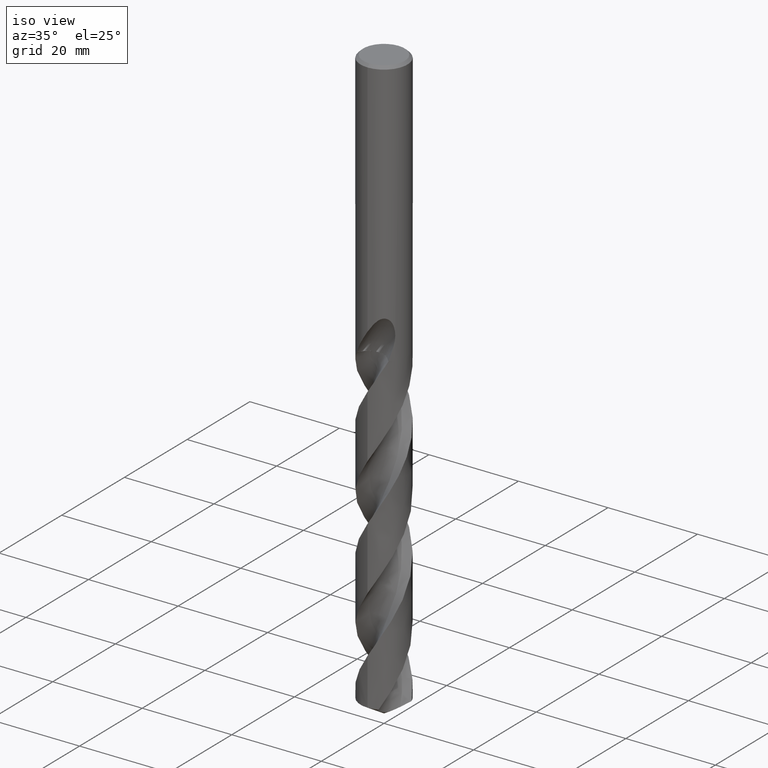
[diagram: clean part render]
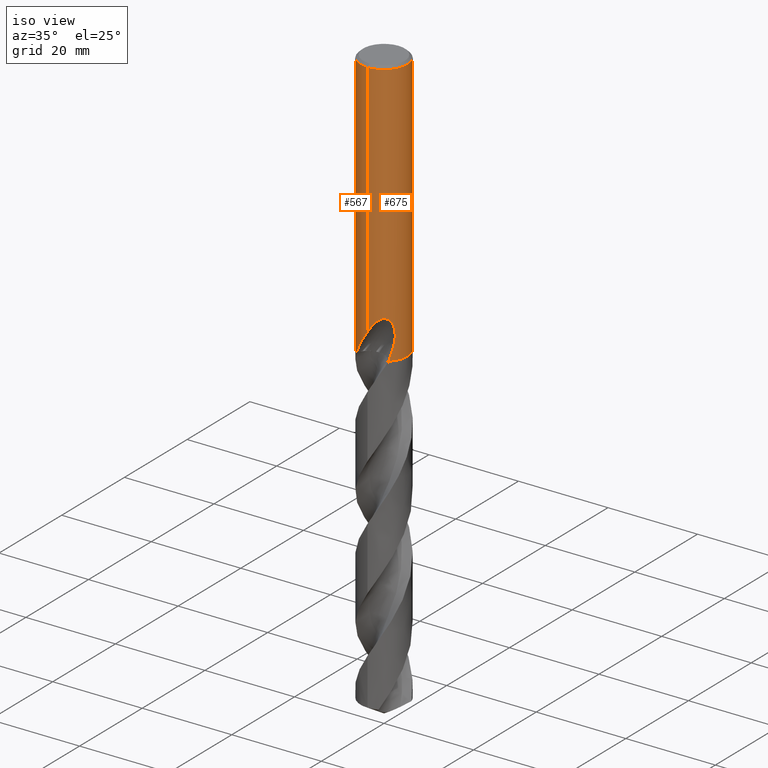
[diagram: same view with one multi-face feature highlighted, each face labeled with its STEP entity id]
A machine part, iso view. The highlighted faces form ONE feature: a constant-radius fillet chain: 2 tangent blend faces with common blend radius 5.25 mm. The faces share edges in the B-rep.
Their STEP definitions:
[1] entity #675 (Cylinder):
#271=VERTEX_POINT('',#748);
#275=VERTEX_POINT('',#753);
#279=EDGE_CURVE('',#423,#301,#757,.T.);
#301=VERTEX_POINT('',#781);
#311=EDGE_CURVE('',#423,#275,#792,.T.);
#313=EDGE_CURVE('',#393,#301,#794,.T.);
#339=EDGE_CURVE('',#661,#271,#823,.T.);
#349=EDGE_CURVE('',#519,#393,#833,.T.);
#373=EDGE_CURVE('',#679,#407,#858,.T.);
#393=VERTEX_POINT('',#881);
#397=EDGE_CURVE('',#685,#519,#885,.T.);
#407=VERTEX_POINT('',#896);
#423=VERTEX_POINT('',#912);
#453=EDGE_CURVE('',#707,#599,#945,.T.);
#457=VERTEX_POINT('',#949);
#497=EDGE_CURVE('',#679,#599,#993,.T.);
#499=EDGE_CURVE('',#605,#457,#995,.T.);
#519=VERTEX_POINT('',#1016);
#541=EDGE_CURVE('',#661,#275,#1039,.T.);
#571=EDGE_CURVE('',#271,#577,#1074,.T.);
#577=VERTEX_POINT('',#1080);
#599=VERTEX_POINT('',#1104);
#605=VERTEX_POINT('',#1110);
#615=EDGE_CURVE('',#407,#605,#1121,.T.);
#661=VERTEX_POINT('',#1170);
#663=EDGE_CURVE('',#457,#685,#1172,.T.);
#675=ADVANCED_FACE('',(#1186),#1187,.T.);
#679=VERTEX_POINT('',#1191);
#685=VERTEX_POINT('',#1197);
#699=EDGE_CURVE('',#707,#577,#1214,.T.);
#707=VERTEX_POINT('',#1223);
#748=CARTESIAN_POINT('',(4.27162135735454,-3.052171518672,-56.6302038027643));
#753=CARTESIAN_POINT('',(6.42918335756748E-016,-5.25,-0.600000000000001));
#757=LINE('',#1271,#1272);
#781=CARTESIAN_POINT('',(2.77694703732907E-015,5.25,-37.0232688117743));
#792=CIRCLE('',#1851,5.25);
#794=B_SPLINE_CURVE_WITH_KNOTS('',3,(#1854,#1855,#1856,#1857,#1858,#1859,#1860,#1861,#1862,#1863,#1864,#1865,#1866,#1867,#1868,#1869,#1870,#1871,#1872,#1873,#1874,#1875,#1876,#1877,#1878,#1879,#1880),.UNSPECIFIED.,.F.,.F.,(4,2,3,2,2,2,2,2,2,2,2,2,4),(-0.542399795064322,-0.271199897532161,0.0,0.271199897532165,0.542399795064329,0.814116667469375,1.08583353987442,1.35668430204441,1.62753506421439,1.89864140789568,2.16974775157697,2.44085409525827,2.71196043893956),.UNSPECIFIED.);
#823=B_SPLINE_CURVE_WITH_KNOTS('',3,(#3031,#3032,#3033,#3034,#3035,#3036,#3037,#3038,#3039,#3040,#3041,#3042,#3043,#3044,#3045,#3046,#3047,#3048,#3049,#3050,#3051,#3052,#3053,#3054,#3055,#3056,#3057,#3058,#3059,#3060),.UNSPECIFIED.,.F.,.F.,(4,2,2,2,2,2,2,2,2,2,2,2,2,2,4),(0.0,2.56856320752265,3.97271350027368,5.24506433148082,6.72354916384614,8.49927682704345,10.0360810336537,10.7333505914258,11.2430145050656,11.7253351143545,12.3372318489402,13.2324992318586,14.5052005400863,15.3377357336065,16.2126627555783),.UNSPECIFIED.);
#833=B_SPLINE_CURVE_WITH_KNOTS('',3,(#3223,#3224,#3225,#3226,#3227,#3228,#3229,#3230,#3231,#3232),.UNSPECIFIED.,.F.,.F.,(4,2,2,2,4),(0.617968789096333,0.9269531836445,1.23593757819267,1.54464396793388,1.8533503576751),.UNSPECIFIED.);
#858=B_SPLINE_CURVE_WITH_KNOTS('',3,(#3268,#3269,#3270,#3271,#3272,#3273,#3274,#3275,#3276,#3277,#3278,#3279,#3280,#3281,#3282,#3283),.UNSPECIFIED.,.F.,.F.,(4,2,2,2,2,2,2,4),(5.87056817262599,6.17961358051911,6.48873534269176,6.79785710486442,7.10697886703708,7.41610062920974,7.72480703614287,8.03351344307601),.UNSPECIFIED.);
#881=CARTESIAN_POINT('',(0.799431726384364,5.18877720805684,-36.000000276873));
#885=LINE('',#3367,#3368);
#896=CARTESIAN_POINT('',(0.29010312703583,5.24197865082299,-38.9998328990228));
#912=CARTESIAN_POINT('',(0.0,5.25,-0.600000000000001));
#945=B_SPLINE_CURVE_WITH_KNOTS('',3,(#3782,#3783,#3784,#3785,#3786,#3787,#3788,#3789,#3790,#3791,#3792,#3793,#3794,#3795,#3796,#3797,#3798,#3799,#3800,#3801,#3802,#3803,#3804,#3805,#3806,#3807,#3808,#3809,#3810,#3811),.UNSPECIFIED.,.F.,.F.,(4,2,2,2,2,2,2,2,2,2,2,2,2,2,4),(0.0,2.56856320752267,3.97271350027355,5.24506433148059,6.72354916384636,8.49927682704405,10.0360810336548,10.7333505914268,11.2430145050666,11.7253351143554,12.3372318489411,13.232499231861,14.5052005400926,15.3377357336148,16.2126627555888),.UNSPECIFIED.);
#949=CARTESIAN_POINT('',(0.873560781758956,5.17681287671987,-38.7587351791531));
#993=LINE('',#3907,#3908);
#995=LINE('',#3911,#3912);
#1016=CARTESIAN_POINT('',(1.33721006514658,5.0768463874408,-36.5150484364821));
#1039=LINE('',#4459,#4460);
#1074=B_SPLINE_CURVE_WITH_KNOTS('',3,(#4531,#4532,#4533,#4534),.UNSPECIFIED.,.F.,.F.,(4,4),(0.0,3.01201816955714),.UNSPECIFIED.);
#1080=CARTESIAN_POINT('',(3.65047600836312,-3.7731319765369,-59.5));
#1104=CARTESIAN_POINT('',(-1.61924867367628E-012,5.25,-53.9243709465312));
#1110=CARTESIAN_POINT('',(0.873560781758957,5.17681287671987,-37.3198931596091));
#1121=ELLIPSE('',#4711,16.0019715101913,5.25);
#1170=CARTESIAN_POINT('',(1.61969276288613E-012,-5.25,-53.9243709465312));
#1172=B_SPLINE_CURVE_WITH_KNOTS('',3,(#5458,#5459,#5460,#5461,#5462,#5463,#5464,#5465,#5466,#5467),.UNSPECIFIED.,.F.,.F.,(4,2,2,2,4),(8.03351270582738,8.34221908513117,8.65092546443496,8.95990984825869,9.26889423208242),.UNSPECIFIED.);
#1186=FACE_OUTER_BOUND('',#5630,.T.);
#1187=CYLINDRICAL_SURFACE('',#5631,5.25);
#1191=CARTESIAN_POINT('',(-1.14507206770393E-015,5.25,-39.0310253601033));
#1197=CARTESIAN_POINT('',(1.33721006514658,5.0768463874408,-38.2901657003257));
#1214=CIRCLE('',#6459,5.25);
#1223=CARTESIAN_POINT('',(3.34300309684929,4.04806500620433,-59.5));
#1271=CARTESIAN_POINT('',(-6.42918335756748E-016,5.25,-50.25));
#1272=VECTOR('',#6848,1.0);
#1851=AXIS2_PLACEMENT_3D('',#6906,#6907,#6908);
#1854=CARTESIAN_POINT('',(0.665097026860736,5.20770063894431,-35.813570575918));
#1855=CARTESIAN_POINT('',(0.728729365813046,5.19957388927424,-35.8772654360235));
#1856=CARTESIAN_POINT('',(0.783967374853908,5.19126897051171,-35.9579473086228));
#1857=CARTESIAN_POINT('',(0.857307611586588,5.17966234826987,-36.1349291572767));
#1858=CARTESIAN_POINT('',(0.875400981188567,5.17650201604656,-36.2312420467427));
#1859=CARTESIAN_POINT('',(0.875400981188567,5.17650201604656,-36.3216420125868));
#1860=CARTESIAN_POINT('',(0.875400981188567,5.17650201604656,-36.4120419784308));
#1861=CARTESIAN_POINT('',(0.857307611586587,5.17966234826987,-36.5083548678969));
#1862=CARTESIAN_POINT('',(0.783967374853902,5.19126897051171,-36.6853367165508));
#1863=CARTESIAN_POINT('',(0.728729365813047,5.19957388927424,-36.7660185891501));
#1864=CARTESIAN_POINT('',(0.601343388746291,5.21584288023299,-36.8935297277042));
#1865=CARTESIAN_POINT('',(0.520598402331123,5.22488038300429,-36.9488795735804));
#1866=CARTESIAN_POINT('',(0.343463081451269,5.2395067348466,-37.022377386646));
#1867=CARTESIAN_POINT('',(0.24705841766139,5.24496572706855,-37.0405166027747));
#1868=CARTESIAN_POINT('',(0.0662829394077855,5.25035786381228,-37.0405166027747));
#1869=CARTESIAN_POINT('',(-0.0299882923670762,5.25066114829167,-37.0224806987772));
#1870=CARTESIAN_POINT('',(-0.207050941697533,5.24666291079663,-36.9491562461929));
#1871=CARTESIAN_POINT('',(-0.287846680828677,5.24249287782911,-36.8938710224876));
#1872=CARTESIAN_POINT('',(-0.415483515486104,5.23392476555411,-36.7663143520323));
#1873=CARTESIAN_POINT('',(-0.470834291982823,5.22897465408802,-36.6855001971403));
#1874=CARTESIAN_POINT('',(-0.54426858087232,5.22184187657221,-36.5083519547388));
#1875=CARTESIAN_POINT('',(-0.562348199187247,5.21979544645869,-36.4120107938139));
#1876=CARTESIAN_POINT('',(-0.562348199187247,5.21979544645869,-36.2312732313597));
#1877=CARTESIAN_POINT('',(-0.54426858087232,5.22184187657221,-36.1349320704347));
#1878=CARTESIAN_POINT('',(-0.470834291982819,5.22897465408802,-35.9577838280332));
#1879=CARTESIAN_POINT('',(-0.415483515486106,5.23392476555411,-35.8769696731413));
#1880=CARTESIAN_POINT('',(-0.351635002034701,5.23821084200933,-35.8131612606933));
#3031=CARTESIAN_POINT('',(-3.34300309684929,-4.04806500620433,-59.5));
#3032=CARTESIAN_POINT('',(-2.99687822959538,-4.3339044137615,-58.7709246620821));
#3033=CARTESIAN_POINT('',(-2.59911045208701,-4.58789438146424,-58.091008233867));
#3034=CARTESIAN_POINT('',(-1.90552422998388,-4.89935642873079,-56.9549437452271));
#3035=CARTESIAN_POINT('',(-1.65575870932603,-4.98901513655451,-56.5549235405047));
#3036=CARTESIAN_POINT('',(-1.17216404099528,-5.12303033228772,-55.7804534587544));
#3037=CARTESIAN_POINT('',(-0.940482875853001,-5.17037770699667,-55.4095956870673));
#3038=CARTESIAN_POINT('',(-0.438936575422659,-5.23868760604929,-54.6102277355297));
#3039=CARTESIAN_POINT('',(-0.164868958937861,-5.25469376107535,-54.1754425452885));
#3040=CARTESIAN_POINT('',(0.443725962911433,-5.24174994041205,-53.2454270976495));
#3041=CARTESIAN_POINT('',(0.804588683468086,-5.2020642357076,-52.7162394633374));
#3042=CARTESIAN_POINT('',(1.50001764722721,-5.04202864043488,-51.8444422866277));
#3043=CARTESIAN_POINT('',(1.8843802813509,-4.92029603540759,-51.4195098901514));
#3044=CARTESIAN_POINT('',(2.46633925228444,-4.6390051665454,-51.0212964624024));
#3045=CARTESIAN_POINT('',(2.6591272909741,-4.53272694860848,-50.9228096802394));
#3046=CARTESIAN_POINT('',(2.99694485361629,-4.31389739293939,-50.847172668473));
#3047=CARTESIAN_POINT('',(3.1355067757508,-4.21423813289497,-50.8457781490611));
#3048=CARTESIAN_POINT('',(3.39358907946698,-4.00896014608491,-50.91204928158));
#3049=CARTESIAN_POINT('',(3.50646270782271,-3.90981372767206,-50.974170961234));
#3050=CARTESIAN_POINT('',(3.73616446599896,-3.69253811426573,-51.1685304660962));
#3051=CARTESIAN_POINT('',(3.84243540459419,-3.57993917174466,-51.3120284745182));
#3052=CARTESIAN_POINT('',(4.06011292075334,-3.33407137982889,-51.7049672032232));
#3053=CARTESIAN_POINT('',(4.16415594422415,-3.20018061934934,-51.9964129061582));
#3054=CARTESIAN_POINT('',(4.35979084456623,-2.93135113066713,-52.8118237590714));
#3055=CARTESIAN_POINT('',(4.43050770497261,-2.81685830844486,-53.3925419090501));
#3056=CARTESIAN_POINT('',(4.4654646539759,-2.76094286092583,-54.46714703385));
#3057=CARTESIAN_POINT('',(4.45722028986141,-2.77461263102338,-54.8950053842224));
#3058=CARTESIAN_POINT('',(4.39906999185343,-2.86596621063543,-55.7633393988255));
#3059=CARTESIAN_POINT('',(4.34716192323178,-2.9464498406556,-56.2005470335072));
#3060=CARTESIAN_POINT('',(4.27162135735455,-3.052171518672,-56.6302038027643));
#3223=CARTESIAN_POINT('',(1.47553105001771,5.03838348286766,-36.7774248903128));
#3224=CARTESIAN_POINT('',(1.43386686490542,5.05058516616606,-36.6772003710789));
#3225=CARTESIAN_POINT('',(1.38209288289205,5.06518749826514,-36.5812783357039));
#3226=CARTESIAN_POINT('',(1.26269926650106,5.09626291427482,-36.4040456456482));
#3227=CARTESIAN_POINT('',(1.19506981885474,5.11270359399583,-36.3227359216919));
#3228=CARTESIAN_POINT('',(1.05117033515797,5.14421627382495,-36.1788837941395));
#3229=CARTESIAN_POINT('',(0.969890272485671,5.16041570730384,-36.1113095648943));
#3230=CARTESIAN_POINT('',(0.792692053591304,5.19058924602321,-35.9919946724535));
#3231=CARTESIAN_POINT('',(0.696774805784578,5.20453447835038,-35.9402453603776));
#3232=CARTESIAN_POINT('',(0.59656055204577,5.2159961184555,-35.8986056305507));
#3268=CARTESIAN_POINT('',(-1.37926742621425,5.06558203634926,-38.3123347547908));
#3269=CARTESIAN_POINT('',(-1.31962906140336,5.08182049684984,-38.4008951534534));
#3270=CARTESIAN_POINT('',(-1.25207888936096,5.09904307195139,-38.4821459680166));
#3271=CARTESIAN_POINT('',(-1.10830029839744,5.13221345353604,-38.6259736555233));
#3272=CARTESIAN_POINT('',(-1.02704149791913,5.14934872075352,-38.6935757189003));
#3273=CARTESIAN_POINT('',(-0.849869700727159,5.18153722152637,-38.8129566745856));
#3274=CARTESIAN_POINT('',(-0.753957413257384,5.19656163444011,-38.864744388435));
#3275=CARTESIAN_POINT('',(-0.553494164547183,5.22171895170731,-38.9481071622894));
#3276=CARTESIAN_POINT('',(-0.448771587220649,5.23185310104718,-38.979748086953));
#3277=CARTESIAN_POINT('',(-0.237726512447408,5.24568097711988,-39.0213363554506));
#3278=CARTESIAN_POINT('',(-0.131401253104081,5.24936673069548,-39.0312723335086));
#3279=CARTESIAN_POINT('',(0.0745384646860068,5.25047929876906,-39.0312723335086));
#3280=CARTESIAN_POINT('',(0.180760056506751,5.24794997541603,-39.0213625600103));
#3281=CARTESIAN_POINT('',(0.391662828937599,5.23643517776389,-38.9798452831324));
#3282=CARTESIAN_POINT('',(0.496346588782296,5.22745773108946,-38.9482486566367));
#3283=CARTESIAN_POINT('',(0.596560847506726,5.21599608466322,-38.9066089245671));
#3367=CARTESIAN_POINT('',(1.33721006514658,5.0768463874408,-37.4026070684039));
#3368=VECTOR('',#6979,1.0);
#3782=CARTESIAN_POINT('',(3.34300309684929,4.04806500620433,-59.5));
#3783=CARTESIAN_POINT('',(2.99687822959538,4.3339044137615,-58.770924662082));
#3784=CARTESIAN_POINT('',(2.599110452087,4.58789438146424,-58.091008233867));
#3785=CARTESIAN_POINT('',(1.90552422998392,4.89935642873077,-56.9549437452272));
#3786=CARTESIAN_POINT('',(1.6557587093261,4.9890151365545,-56.5549235405048));
#3787=CARTESIAN_POINT('',(1.17216404099521,5.12303033228774,-55.7804534587543));
#3788=CARTESIAN_POINT('',(0.94048287585285,5.17037770699668,-55.409595687067));
#3789=CARTESIAN_POINT('',(0.438936575422741,5.23868760604927,-54.6102277355298));
#3790=CARTESIAN_POINT('',(0.164868958937902,5.25469376107535,-54.1754425452885));
#3791=CARTESIAN_POINT('',(-0.443725962911445,5.24174994041205,-53.2454270976495));
#3792=CARTESIAN_POINT('',(-0.804588683468087,5.2020642357076,-52.7162394633374));
#3793=CARTESIAN_POINT('',(-1.50001764722722,5.04202864043487,-51.8444422866277));
#3794=CARTESIAN_POINT('',(-1.88438028135091,4.92029603540759,-51.4195098901514));
#3795=CARTESIAN_POINT('',(-2.4663392522844,4.63900516654542,-51.0212964624024));
#3796=CARTESIAN_POINT('',(-2.65912729097409,4.53272694860848,-50.9228096802394));
#3797=CARTESIAN_POINT('',(-2.99694485361629,4.31389739293939,-50.847172668473));
#3798=CARTESIAN_POINT('',(-3.13550677575081,4.21423813289498,-50.8457781490611));
#3799=CARTESIAN_POINT('',(-3.39358907946699,4.00896014608492,-50.91204928158));
#3800=CARTESIAN_POINT('',(-3.50646270782272,3.90981372767206,-50.9741709612339));
#3801=CARTESIAN_POINT('',(-3.73616446599898,3.69253811426573,-51.1685304660962));
#3802=CARTESIAN_POINT('',(-3.84243540459421,3.57993917174464,-51.3120284745182));
#3803=CARTESIAN_POINT('',(-4.06011292075358,3.33407137982862,-51.7049672032237));
#3804=CARTESIAN_POINT('',(-4.16415594422431,3.20018061934912,-51.9964129061588));
#3805=CARTESIAN_POINT('',(-4.35979084456616,2.93135113066723,-52.8118237590711));
#3806=CARTESIAN_POINT('',(-4.43050770497261,2.81685830844487,-53.3925419090497));
#3807=CARTESIAN_POINT('',(-4.46546465397591,2.76094286092583,-54.46714703385));
#3808=CARTESIAN_POINT('',(-4.45722028986141,2.77461263102337,-54.8950053842224));
#3809=CARTESIAN_POINT('',(-4.39906999185344,2.86596621063543,-55.7633393988255));
#3810=CARTESIAN_POINT('',(-4.34716192323179,2.94644984065559,-56.2005470335072));
#3811=CARTESIAN_POINT('',(-4.27162135735455,3.05217151867199,-56.6302038027642));
#3907=CARTESIAN_POINT('',(-6.42918335756748E-016,5.25,-50.25));
#3908=VECTOR('',#7074,1.0);
#3911=CARTESIAN_POINT('',(0.873560781758957,5.17681287671987,-38.0393141693811));
#3912=VECTOR('',#7075,1.0);
#4459=CARTESIAN_POINT('',(6.42918335756748E-016,-5.25,-50.25));
#4460=VECTOR('',#7106,1.0);
#4531=CARTESIAN_POINT('',(4.27162135740717,-3.05217151859835,-56.6302038027932));
#4532=CARTESIAN_POINT('',(4.10266082013963,-3.28863773131056,-57.591226294007));
#4533=CARTESIAN_POINT('',(3.89908268754416,-3.5326069369908,-58.5579336632313));
#4534=CARTESIAN_POINT('',(3.65047600836312,-3.7731319765369,-59.5));
#4711=AXIS2_PLACEMENT_3D('',#7219,#7220,#7221);
#5458=CARTESIAN_POINT('',(0.596560574337958,5.21599611590591,-38.9066084901482));
#5459=CARTESIAN_POINT('',(0.696774824656029,5.20453447575813,-38.8649687617263));
#5460=CARTESIAN_POINT('',(0.792692069184456,5.19058924358933,-38.8132194513991));
#5461=CARTESIAN_POINT('',(0.96989028202291,5.16041570545849,-38.6939045629876));
#5462=CARTESIAN_POINT('',(1.0511703419175,5.14421627240791,-38.626330336023));
#5463=CARTESIAN_POINT('',(1.19506982063513,5.11270359354264,-38.4824782133751));
#5464=CARTESIAN_POINT('',(1.26269926591824,5.09626291439306,-38.4011684922262));
#5465=CARTESIAN_POINT('',(1.38209287814114,5.06518749953515,-38.2239358082892));
#5466=CARTESIAN_POINT('',(1.43386685834914,5.05058516801421,-38.1280137762253));
#5467=CARTESIAN_POINT('',(1.47553104200775,5.03838348521344,-38.0277892604537));
#5630=EDGE_LOOP('',(#7283,#7284,#7285,#7286,#7287,#7288,#7289,#7290,#7291,#7292,#7293,#7294,#7295,#7296,#7297));
#5631=AXIS2_PLACEMENT_3D('',#7298,#7299,#7300);
#6459=AXIS2_PLACEMENT_3D('',#7335,#7336,#7337);
#6848=DIRECTION('',(0.0,0.0,-1.0));
#6906=CARTESIAN_POINT('',(0.0,0.0,-0.600000000000001));
#6907=DIRECTION('',(0.0,0.0,-1.0));
#6908=DIRECTION('',(0.0,1.0,0.0));
#6979=DIRECTION('',(-0.0,-0.0,1.0));
#7074=DIRECTION('',(0.0,0.0,-1.0));
#7075=DIRECTION('',(0.0,0.0,-1.0));
#7106=DIRECTION('',(-0.0,-0.0,1.0));
#7219=CARTESIAN_POINT('',(0.0,0.0,-39.8351219173269));
#7220=DIRECTION('',(0.944648353914092,0.0,-0.328084573619969));
#7221=DIRECTION('',(0.328084573619969,-0.0,0.944648353914092));
#7283=ORIENTED_EDGE('',*,*,#279,.F.);
#7284=ORIENTED_EDGE('',*,*,#311,.T.);
#7285=ORIENTED_EDGE('',*,*,#541,.F.);
#7286=ORIENTED_EDGE('',*,*,#339,.T.);
#7287=ORIENTED_EDGE('',*,*,#571,.T.);
#7288=ORIENTED_EDGE('',*,*,#699,.F.);
#7289=ORIENTED_EDGE('',*,*,#453,.T.);
#7290=ORIENTED_EDGE('',*,*,#497,.F.);
#7291=ORIENTED_EDGE('',*,*,#373,.T.);
#7292=ORIENTED_EDGE('',*,*,#615,.T.);
#7293=ORIENTED_EDGE('',*,*,#499,.T.);
#7294=ORIENTED_EDGE('',*,*,#663,.T.);
#7295=ORIENTED_EDGE('',*,*,#397,.T.);
#7296=ORIENTED_EDGE('',*,*,#349,.T.);
#7297=ORIENTED_EDGE('',*,*,#313,.T.);
#7298=CARTESIAN_POINT('',(0.0,0.0,-50.25));
#7299=DIRECTION('',(-0.0,-0.0,1.0));
#7300=DIRECTION('',(0.0,1.0,0.0));
#7335=CARTESIAN_POINT('',(0.0,0.0,-59.5));
#7336=DIRECTION('',(0.0,0.0,-1.0));
#7337=DIRECTION('',(0.0,1.0,0.0));
[2] entity #567 (Cylinder):
#275=VERTEX_POINT('',#753);
#279=EDGE_CURVE('',#423,#301,#757,.T.);
#287=VERTEX_POINT('',#766);
#301=VERTEX_POINT('',#781);
#335=EDGE_CURVE('',#287,#387,#819,.T.);
#343=EDGE_CURVE('',#371,#387,#827,.T.);
#361=VERTEX_POINT('',#846);
#371=VERTEX_POINT('',#856);
#377=EDGE_CURVE('',#287,#661,#862,.T.);
#387=VERTEX_POINT('',#874);
#399=VERTEX_POINT('',#887);
#423=VERTEX_POINT('',#912);
#445=EDGE_CURVE('',#361,#399,#937,.T.);
#451=EDGE_CURVE('',#399,#655,#943,.T.);
#455=EDGE_CURVE('',#515,#361,#947,.T.);
#497=EDGE_CURVE('',#679,#599,#993,.T.);
#513=EDGE_CURVE('',#655,#639,#1010,.T.);
#515=VERTEX_POINT('',#1012);
#523=EDGE_CURVE('',#565,#515,#1020,.T.);
#541=EDGE_CURVE('',#661,#275,#1039,.T.);
#543=EDGE_CURVE('',#275,#423,#1041,.T.);
#555=EDGE_CURVE('',#301,#565,#1055,.T.);
#565=VERTEX_POINT('',#1067);
#567=ADVANCED_FACE('',(#1069),#1070,.T.);
#599=VERTEX_POINT('',#1104);
#603=EDGE_CURVE('',#599,#371,#1108,.T.);
#639=VERTEX_POINT('',#1147);
#655=VERTEX_POINT('',#1163);
#661=VERTEX_POINT('',#1170);
#679=VERTEX_POINT('',#1191);
#681=EDGE_CURVE('',#639,#679,#1193,.T.);
#753=CARTESIAN_POINT('',(6.42918335756748E-016,-5.25,-0.600000000000001));
#757=LINE('',#1271,#1272);
#766=CARTESIAN_POINT('',(-3.34300309684929,-4.04806500620433,-59.5));
#781=CARTESIAN_POINT('',(2.77694703732907E-015,5.25,-37.0232688117743));
#819=CIRCLE('',#3026,5.25);
#827=B_SPLINE_CURVE_WITH_KNOTS('',3,(#3213,#3214,#3215,#3216),.UNSPECIFIED.,.F.,.F.,(4,4),(0.0,3.01201816955674),.UNSPECIFIED.);
#846=CARTESIAN_POINT('',(-1.0350734039088,5.14695279252886,-36.3171221986971));
#856=CARTESIAN_POINT('',(-4.27162135735455,3.05217151867199,-56.6302038027642));
#862=B_SPLINE_CURVE_WITH_KNOTS('',3,(#3288,#3289,#3290,#3291,#3292,#3293,#3294,#3295,#3296,#3297,#3298,#3299,#3300,#3301,#3302,#3303,#3304,#3305,#3306,#3307,#3308,#3309,#3310,#3311,#3312,#3313,#3314,#3315,#3316,#3317),.UNSPECIFIED.,.F.,.F.,(4,2,2,2,2,2,2,2,2,2,2,2,2,2,4),(0.0,2.56856320752265,3.97271350027368,5.24506433148082,6.72354916384614,8.49927682704345,10.0360810336537,10.7333505914258,11.2430145050656,11.7253351143545,12.3372318489402,13.2324992318586,14.5052005400863,15.3377357336065,16.2126627555783),.UNSPECIFIED.);
#874=CARTESIAN_POINT('',(-3.65047600836313,3.77313197653689,-59.5));
#887=CARTESIAN_POINT('',(-1.17859584229484E-015,5.25,-37.5000801551881));
#912=CARTESIAN_POINT('',(0.0,5.25,-0.600000000000001));
#937=B_SPLINE_CURVE_WITH_KNOTS('',3,(#3756,#3757,#3758,#3759,#3760,#3761,#3762,#3763,#3764,#3765,#3766,#3767,#3768,#3769),.UNSPECIFIED.,.F.,.F.,(4,2,2,2,2,2,4),(3.13200953780745,3.57919062656478,4.0263717153221,4.47355280407943,4.91990756628693,5.36626232849443,5.81486346914523),.UNSPECIFIED.);
#943=LINE('',#3778,#3779);
#947=CIRCLE('',#3814,5.25);
#993=LINE('',#3907,#3908);
#1010=ELLIPSE('',#4244,5.85337426822502,5.25);
#1012=CARTESIAN_POINT('',(-0.562333990228013,5.21979697722375,-36.3171221986971));
#1020=B_SPLINE_CURVE_WITH_KNOTS('',3,(#4404,#4405,#4406,#4407,#4408,#4409,#4410,#4411,#4412,#4413,#4414,#4415,#4416,#4417,#4418,#4419,#4420,#4421,#4422,#4423,#4424,#4425,#4426,#4427,#4428,#4429,#4430),.UNSPECIFIED.,.F.,.F.,(4,2,3,2,2,2,2,2,2,2,2,2,4),(-0.542399795064322,-0.271199897532161,0.0,0.271199897532165,0.542399795064329,0.814116667469375,1.08583353987442,1.35668430204441,1.62753506421439,1.89864140789568,2.16974775157697,2.44085409525827,2.71196043893956),.UNSPECIFIED.);
#1039=LINE('',#4459,#4460);
#1041=CIRCLE('',#4463,5.25);
#1055=B_SPLINE_CURVE_WITH_KNOTS('',3,(#4483,#4484,#4485,#4486,#4487,#4488,#4489,#4490,#4491,#4492,#4493,#4494,#4495,#4496,#4497,#4498,#4499,#4500,#4501,#4502,#4503,#4504,#4505,#4506,#4507,#4508,#4509),.UNSPECIFIED.,.F.,.F.,(4,2,3,2,2,2,2,2,2,2,2,2,4),(-0.542399795064322,-0.271199897532161,0.0,0.271199897532165,0.542399795064329,0.814116667469375,1.08583353987442,1.35668430204441,1.62753506421439,1.89864140789568,2.16974775157697,2.44085409525827,2.71196043893956),.UNSPECIFIED.);
#1067=CARTESIAN_POINT('',(-0.486378944383045,5.22742149845034,-36.6432837483006));
#1069=FACE_OUTER_BOUND('',#4523,.T.);
#1070=CYLINDRICAL_SURFACE('',#4524,5.25);
#1104=CARTESIAN_POINT('',(-1.61924867367628E-012,5.25,-53.9243709465312));
#1108=B_SPLINE_CURVE_WITH_KNOTS('',3,(#4635,#4636,#4637,#4638,#4639,#4640,#4641,#4642,#4643,#4644,#4645,#4646,#4647,#4648,#4649,#4650,#4651,#4652,#4653,#4654,#4655,#4656,#4657,#4658,#4659,#4660,#4661,#4662,#4663,#4664),.UNSPECIFIED.,.F.,.F.,(4,2,2,2,2,2,2,2,2,2,2,2,2,2,4),(0.0,2.56856320752267,3.97271350027355,5.24506433148059,6.72354916384636,8.49927682704405,10.0360810336548,10.7333505914268,11.2430145050666,11.7253351143554,12.3372318489411,13.232499231861,14.5052005400926,15.3377357336148,16.2126627555888),.UNSPECIFIED.);
#1147=CARTESIAN_POINT('',(-1.337052752443,5.07688782003154,-38.3720803908795));
#1163=CARTESIAN_POINT('',(-8.21544981943547E-016,5.25,-37.7128911336578));
#1170=CARTESIAN_POINT('',(1.61969276288613E-012,-5.25,-53.9243709465312));
#1191=CARTESIAN_POINT('',(-1.14507206770393E-015,5.25,-39.0310253601033));
#1193=B_SPLINE_CURVE_WITH_KNOTS('',3,(#5640,#5641,#5642,#5643,#5644,#5645,#5646,#5647,#5648,#5649,#5650,#5651,#5652,#5653,#5654,#5655),.UNSPECIFIED.,.F.,.F.,(4,2,2,2,2,2,2,4),(5.87056817262599,6.17961358051911,6.48873534269176,6.79785710486442,7.10697886703708,7.41610062920974,7.72480703614287,8.03351344307601),.UNSPECIFIED.);
#1271=CARTESIAN_POINT('',(-6.42918335756748E-016,5.25,-50.25));
#1272=VECTOR('',#6848,1.0);
#3026=AXIS2_PLACEMENT_3D('',#6933,#6934,#6935);
#3213=CARTESIAN_POINT('',(-4.27162135740716,3.05217151859835,-56.6302038027932));
#3214=CARTESIAN_POINT('',(-4.10266082013964,3.28863773131052,-57.5912262940069));
#3215=CARTESIAN_POINT('',(-3.89908268754417,3.53260693699078,-58.5579336632313));
#3216=CARTESIAN_POINT('',(-3.65047600836312,3.77313197653689,-59.5));
#3288=CARTESIAN_POINT('',(-3.34300309684929,-4.04806500620433,-59.5));
#3289=CARTESIAN_POINT('',(-2.99687822959538,-4.3339044137615,-58.7709246620821));
#3290=CARTESIAN_POINT('',(-2.59911045208701,-4.58789438146424,-58.091008233867));
#3291=CARTESIAN_POINT('',(-1.90552422998388,-4.89935642873079,-56.9549437452271));
#3292=CARTESIAN_POINT('',(-1.65575870932603,-4.98901513655451,-56.5549235405047));
#3293=CARTESIAN_POINT('',(-1.17216404099528,-5.12303033228772,-55.7804534587544));
#3294=CARTESIAN_POINT('',(-0.940482875853001,-5.17037770699667,-55.4095956870673));
#3295=CARTESIAN_POINT('',(-0.438936575422659,-5.23868760604929,-54.6102277355297));
#3296=CARTESIAN_POINT('',(-0.164868958937861,-5.25469376107535,-54.1754425452885));
#3297=CARTESIAN_POINT('',(0.443725962911433,-5.24174994041205,-53.2454270976495));
#3298=CARTESIAN_POINT('',(0.804588683468086,-5.2020642357076,-52.7162394633374));
#3299=CARTESIAN_POINT('',(1.50001764722721,-5.04202864043488,-51.8444422866277));
#3300=CARTESIAN_POINT('',(1.8843802813509,-4.92029603540759,-51.4195098901514));
#3301=CARTESIAN_POINT('',(2.46633925228444,-4.6390051665454,-51.0212964624024));
#3302=CARTESIAN_POINT('',(2.6591272909741,-4.53272694860848,-50.9228096802394));
#3303=CARTESIAN_POINT('',(2.99694485361629,-4.31389739293939,-50.847172668473));
#3304=CARTESIAN_POINT('',(3.1355067757508,-4.21423813289497,-50.8457781490611));
#3305=CARTESIAN_POINT('',(3.39358907946698,-4.00896014608491,-50.91204928158));
#3306=CARTESIAN_POINT('',(3.50646270782271,-3.90981372767206,-50.974170961234));
#3307=CARTESIAN_POINT('',(3.73616446599896,-3.69253811426573,-51.1685304660962));
#3308=CARTESIAN_POINT('',(3.84243540459419,-3.57993917174466,-51.3120284745182));
#3309=CARTESIAN_POINT('',(4.06011292075334,-3.33407137982889,-51.7049672032232));
#3310=CARTESIAN_POINT('',(4.16415594422415,-3.20018061934934,-51.9964129061582));
#3311=CARTESIAN_POINT('',(4.35979084456623,-2.93135113066713,-52.8118237590714));
#3312=CARTESIAN_POINT('',(4.43050770497261,-2.81685830844486,-53.3925419090501));
#3313=CARTESIAN_POINT('',(4.4654646539759,-2.76094286092583,-54.46714703385));
#3314=CARTESIAN_POINT('',(4.45722028986141,-2.77461263102338,-54.8950053842224));
#3315=CARTESIAN_POINT('',(4.39906999185343,-2.86596621063543,-55.7633393988255));
#3316=CARTESIAN_POINT('',(4.34716192323178,-2.9464498406556,-56.2005470335072));
#3317=CARTESIAN_POINT('',(4.27162135735455,-3.052171518672,-56.6302038027643));
#3756=CARTESIAN_POINT('',(-0.944726580949705,5.16429972864154,-35.8727735479747));
#3757=CARTESIAN_POINT('',(-1.00522445926378,5.1532326065503,-36.0185309424483));
#3758=CARTESIAN_POINT('',(-1.03510901790186,5.14694563027999,-36.1772414978137));
#3759=CARTESIAN_POINT('',(-1.03510901790186,5.14694563027999,-36.4753622236519));
#3760=CARTESIAN_POINT('',(-1.00522445926378,5.1532326065503,-36.6340727790173));
#3761=CARTESIAN_POINT('',(-0.884228702635643,5.1753668507328,-36.9255875679646));
#3762=CARTESIAN_POINT('',(-0.79313826964226,5.19082359970681,-37.058429939304));
#3763=CARTESIAN_POINT('',(-0.583330107546477,5.2185632623953,-37.2680077511721));
#3764=CARTESIAN_POINT('',(-0.450556858958883,5.23266465409897,-37.3589091799515));
#3765=CARTESIAN_POINT('',(-0.159290130623191,5.2496102253963,-37.479599898615));
#3766=CARTESIAN_POINT('',(-0.000768071387690805,5.25210780189294,-37.5093686300866));
#3767=CARTESIAN_POINT('',(0.297432069682848,5.24370045820815,-37.5093686300866));
#3768=CARTESIAN_POINT('',(0.45630128312971,5.2321896564089,-37.4793311366142));
#3769=CARTESIAN_POINT('',(0.602028726935022,5.21536781176026,-37.4187607981639));
#3778=CARTESIAN_POINT('',(-6.42918335756748E-016,5.25,-50.25));
#3779=VECTOR('',#7027,1.0);
#3814=AXIS2_PLACEMENT_3D('',#7028,#7029,#7030);
#3907=CARTESIAN_POINT('',(-6.42918335756748E-016,5.25,-50.25));
#3908=VECTOR('',#7074,1.0);
#4244=AXIS2_PLACEMENT_3D('',#7089,#7090,#7091);
#4404=CARTESIAN_POINT('',(0.665097026860736,5.20770063894431,-35.813570575918));
#4405=CARTESIAN_POINT('',(0.728729365813046,5.19957388927424,-35.8772654360235));
#4406=CARTESIAN_POINT('',(0.783967374853908,5.19126897051171,-35.9579473086228));
#4407=CARTESIAN_POINT('',(0.857307611586588,5.17966234826987,-36.1349291572767));
#4408=CARTESIAN_POINT('',(0.875400981188567,5.17650201604656,-36.2312420467427));
#4409=CARTESIAN_POINT('',(0.875400981188567,5.17650201604656,-36.3216420125868));
#4410=CARTESIAN_POINT('',(0.875400981188567,5.17650201604656,-36.4120419784308));
#4411=CARTESIAN_POINT('',(0.857307611586587,5.17966234826987,-36.5083548678969));
#4412=CARTESIAN_POINT('',(0.783967374853902,5.19126897051171,-36.6853367165508));
#4413=CARTESIAN_POINT('',(0.728729365813047,5.19957388927424,-36.7660185891501));
#4414=CARTESIAN_POINT('',(0.601343388746291,5.21584288023299,-36.8935297277042));
#4415=CARTESIAN_POINT('',(0.520598402331123,5.22488038300429,-36.9488795735804));
#4416=CARTESIAN_POINT('',(0.343463081451269,5.2395067348466,-37.022377386646));
#4417=CARTESIAN_POINT('',(0.24705841766139,5.24496572706855,-37.0405166027747));
#4418=CARTESIAN_POINT('',(0.0662829394077855,5.25035786381228,-37.0405166027747));
#4419=CARTESIAN_POINT('',(-0.0299882923670762,5.25066114829167,-37.0224806987772));
#4420=CARTESIAN_POINT('',(-0.207050941697533,5.24666291079663,-36.9491562461929));
#4421=CARTESIAN_POINT('',(-0.287846680828677,5.24249287782911,-36.8938710224876));
#4422=CARTESIAN_POINT('',(-0.415483515486104,5.23392476555411,-36.7663143520323));
#4423=CARTESIAN_POINT('',(-0.470834291982823,5.22897465408802,-36.6855001971403));
#4424=CARTESIAN_POINT('',(-0.54426858087232,5.22184187657221,-36.5083519547388));
#4425=CARTESIAN_POINT('',(-0.562348199187247,5.21979544645869,-36.4120107938139));
#4426=CARTESIAN_POINT('',(-0.562348199187247,5.21979544645869,-36.2312732313597));
#4427=CARTESIAN_POINT('',(-0.54426858087232,5.22184187657221,-36.1349320704347));
#4428=CARTESIAN_POINT('',(-0.470834291982819,5.22897465408802,-35.9577838280332));
#4429=CARTESIAN_POINT('',(-0.415483515486106,5.23392476555411,-35.8769696731413));
#4430=CARTESIAN_POINT('',(-0.351635002034701,5.23821084200933,-35.8131612606933));
#4459=CARTESIAN_POINT('',(6.42918335756748E-016,-5.25,-50.25));
#4460=VECTOR('',#7106,1.0);
#4463=AXIS2_PLACEMENT_3D('',#7107,#7108,#7109);
#4483=CARTESIAN_POINT('',(0.665097026860736,5.20770063894431,-35.813570575918));
#4484=CARTESIAN_POINT('',(0.728729365813046,5.19957388927424,-35.8772654360235));
#4485=CARTESIAN_POINT('',(0.783967374853908,5.19126897051171,-35.9579473086228));
#4486=CARTESIAN_POINT('',(0.857307611586588,5.17966234826987,-36.1349291572767));
#4487=CARTESIAN_POINT('',(0.875400981188567,5.17650201604656,-36.2312420467427));
#4488=CARTESIAN_POINT('',(0.875400981188567,5.17650201604656,-36.3216420125868));
#4489=CARTESIAN_POINT('',(0.875400981188567,5.17650201604656,-36.4120419784308));
#4490=CARTESIAN_POINT('',(0.857307611586587,5.17966234826987,-36.5083548678969));
#4491=CARTESIAN_POINT('',(0.783967374853902,5.19126897051171,-36.6853367165508));
#4492=CARTESIAN_POINT('',(0.728729365813047,5.19957388927424,-36.7660185891501));
#4493=CARTESIAN_POINT('',(0.601343388746291,5.21584288023299,-36.8935297277042));
#4494=CARTESIAN_POINT('',(0.520598402331123,5.22488038300429,-36.9488795735804));
#4495=CARTESIAN_POINT('',(0.343463081451269,5.2395067348466,-37.022377386646));
#4496=CARTESIAN_POINT('',(0.24705841766139,5.24496572706855,-37.0405166027747));
#4497=CARTESIAN_POINT('',(0.0662829394077855,5.25035786381228,-37.0405166027747));
#4498=CARTESIAN_POINT('',(-0.0299882923670762,5.25066114829167,-37.0224806987772));
#4499=CARTESIAN_POINT('',(-0.207050941697533,5.24666291079663,-36.9491562461929));
#4500=CARTESIAN_POINT('',(-0.287846680828677,5.24249287782911,-36.8938710224876));
#4501=CARTESIAN_POINT('',(-0.415483515486104,5.23392476555411,-36.7663143520323));
#4502=CARTESIAN_POINT('',(-0.470834291982823,5.22897465408802,-36.6855001971403));
#4503=CARTESIAN_POINT('',(-0.54426858087232,5.22184187657221,-36.5083519547388));
#4504=CARTESIAN_POINT('',(-0.562348199187247,5.21979544645869,-36.4120107938139));
#4505=CARTESIAN_POINT('',(-0.562348199187247,5.21979544645869,-36.2312732313597));
#4506=CARTESIAN_POINT('',(-0.54426858087232,5.22184187657221,-36.1349320704347));
#4507=CARTESIAN_POINT('',(-0.470834291982819,5.22897465408802,-35.9577838280332));
#4508=CARTESIAN_POINT('',(-0.415483515486106,5.23392476555411,-35.8769696731413));
#4509=CARTESIAN_POINT('',(-0.351635002034701,5.23821084200933,-35.8131612606933));
#4523=EDGE_LOOP('',(#7146,#7147,#7148,#7149,#7150,#7151,#7152,#7153,#7154,#7155,#7156,#7157,#7158,#7159,#7160));
#4524=AXIS2_PLACEMENT_3D('',#7161,#7162,#7163);
#4635=CARTESIAN_POINT('',(3.34300309684929,4.04806500620433,-59.5));
#4636=CARTESIAN_POINT('',(2.99687822959538,4.3339044137615,-58.770924662082));
#4637=CARTESIAN_POINT('',(2.599110452087,4.58789438146424,-58.091008233867));
#4638=CARTESIAN_POINT('',(1.90552422998392,4.89935642873077,-56.9549437452272));
#4639=CARTESIAN_POINT('',(1.6557587093261,4.9890151365545,-56.5549235405048));
#4640=CARTESIAN_POINT('',(1.17216404099521,5.12303033228774,-55.7804534587543));
#4641=CARTESIAN_POINT('',(0.94048287585285,5.17037770699668,-55.409595687067));
#4642=CARTESIAN_POINT('',(0.438936575422741,5.23868760604927,-54.6102277355298));
#4643=CARTESIAN_POINT('',(0.164868958937902,5.25469376107535,-54.1754425452885));
#4644=CARTESIAN_POINT('',(-0.443725962911445,5.24174994041205,-53.2454270976495));
#4645=CARTESIAN_POINT('',(-0.804588683468087,5.2020642357076,-52.7162394633374));
#4646=CARTESIAN_POINT('',(-1.50001764722722,5.04202864043487,-51.8444422866277));
#4647=CARTESIAN_POINT('',(-1.88438028135091,4.92029603540759,-51.4195098901514));
#4648=CARTESIAN_POINT('',(-2.4663392522844,4.63900516654542,-51.0212964624024));
#4649=CARTESIAN_POINT('',(-2.65912729097409,4.53272694860848,-50.9228096802394));
#4650=CARTESIAN_POINT('',(-2.99694485361629,4.31389739293939,-50.847172668473));
#4651=CARTESIAN_POINT('',(-3.13550677575081,4.21423813289498,-50.8457781490611));
#4652=CARTESIAN_POINT('',(-3.39358907946699,4.00896014608492,-50.91204928158));
#4653=CARTESIAN_POINT('',(-3.50646270782272,3.90981372767206,-50.9741709612339));
#4654=CARTESIAN_POINT('',(-3.73616446599898,3.69253811426573,-51.1685304660962));
#4655=CARTESIAN_POINT('',(-3.84243540459421,3.57993917174464,-51.3120284745182));
#4656=CARTESIAN_POINT('',(-4.06011292075358,3.33407137982862,-51.7049672032237));
#4657=CARTESIAN_POINT('',(-4.16415594422431,3.20018061934912,-51.9964129061588));
#4658=CARTESIAN_POINT('',(-4.35979084456616,2.93135113066723,-52.8118237590711));
#4659=CARTESIAN_POINT('',(-4.43050770497261,2.81685830844487,-53.3925419090497));
#4660=CARTESIAN_POINT('',(-4.46546465397591,2.76094286092583,-54.46714703385));
#4661=CARTESIAN_POINT('',(-4.45722028986141,2.77461263102337,-54.8950053842224));
#4662=CARTESIAN_POINT('',(-4.39906999185344,2.86596621063543,-55.7633393988255));
#4663=CARTESIAN_POINT('',(-4.34716192323179,2.94644984065559,-56.2005470335072));
#4664=CARTESIAN_POINT('',(-4.27162135735455,3.05217151867199,-56.6302038027642));
#5640=CARTESIAN_POINT('',(-1.37926742621425,5.06558203634926,-38.3123347547908));
#5641=CARTESIAN_POINT('',(-1.31962906140336,5.08182049684984,-38.4008951534534));
#5642=CARTESIAN_POINT('',(-1.25207888936096,5.09904307195139,-38.4821459680166));
#5643=CARTESIAN_POINT('',(-1.10830029839744,5.13221345353604,-38.6259736555233));
#5644=CARTESIAN_POINT('',(-1.02704149791913,5.14934872075352,-38.6935757189003));
#5645=CARTESIAN_POINT('',(-0.849869700727159,5.18153722152637,-38.8129566745856));
#5646=CARTESIAN_POINT('',(-0.753957413257384,5.19656163444011,-38.864744388435));
#5647=CARTESIAN_POINT('',(-0.553494164547183,5.22171895170731,-38.9481071622894));
#5648=CARTESIAN_POINT('',(-0.448771587220649,5.23185310104718,-38.979748086953));
#5649=CARTESIAN_POINT('',(-0.237726512447408,5.24568097711988,-39.0213363554506));
#5650=CARTESIAN_POINT('',(-0.131401253104081,5.24936673069548,-39.0312723335086));
#5651=CARTESIAN_POINT('',(0.0745384646860068,5.25047929876906,-39.0312723335086));
#5652=CARTESIAN_POINT('',(0.180760056506751,5.24794997541603,-39.0213625600103));
#5653=CARTESIAN_POINT('',(0.391662828937599,5.23643517776389,-38.9798452831324));
#5654=CARTESIAN_POINT('',(0.496346588782296,5.22745773108946,-38.9482486566367));
#5655=CARTESIAN_POINT('',(0.596560847506726,5.21599608466322,-38.9066089245671));
#6848=DIRECTION('',(0.0,0.0,-1.0));
#6933=CARTESIAN_POINT('',(0.0,0.0,-59.5));
#6934=DIRECTION('',(0.0,0.0,-1.0));
#6935=DIRECTION('',(0.0,1.0,0.0));
#7027=DIRECTION('',(0.0,0.0,-1.0));
#7028=CARTESIAN_POINT('',(0.0,0.0,-36.3171221986971));
#7029=DIRECTION('',(0.0,-0.0,1.0));
#7030=DIRECTION('',(0.0,1.0,0.0));
#7074=DIRECTION('',(0.0,0.0,-1.0));
#7089=CARTESIAN_POINT('',(0.0,0.0,-37.7128911336578));
#7090=DIRECTION('',(-0.442195774284071,0.0,0.896918556617774));
#7091=DIRECTION('',(0.896918556617774,-0.0,0.442195774284071));
#7106=DIRECTION('',(-0.0,-0.0,1.0));
#7107=CARTESIAN_POINT('',(0.0,0.0,-0.600000000000001));
#7108=DIRECTION('',(0.0,0.0,-1.0));
#7109=DIRECTION('',(0.0,1.0,0.0));
#7146=ORIENTED_EDGE('',*,*,#279,.T.);
#7147=ORIENTED_EDGE('',*,*,#555,.T.);
#7148=ORIENTED_EDGE('',*,*,#523,.T.);
#7149=ORIENTED_EDGE('',*,*,#455,.T.);
#7150=ORIENTED_EDGE('',*,*,#445,.T.);
#7151=ORIENTED_EDGE('',*,*,#451,.T.);
#7152=ORIENTED_EDGE('',*,*,#513,.T.);
#7153=ORIENTED_EDGE('',*,*,#681,.T.);
#7154=ORIENTED_EDGE('',*,*,#497,.T.);
#7155=ORIENTED_EDGE('',*,*,#603,.T.);
#7156=ORIENTED_EDGE('',*,*,#343,.T.);
#7157=ORIENTED_EDGE('',*,*,#335,.F.);
#7158=ORIENTED_EDGE('',*,*,#377,.T.);
#7159=ORIENTED_EDGE('',*,*,#541,.T.);
#7160=ORIENTED_EDGE('',*,*,#543,.T.);
#7161=CARTESIAN_POINT('',(0.0,0.0,-50.25));
#7162=DIRECTION('',(-0.0,-0.0,1.0));
#7163=DIRECTION('',(0.0,1.0,0.0));